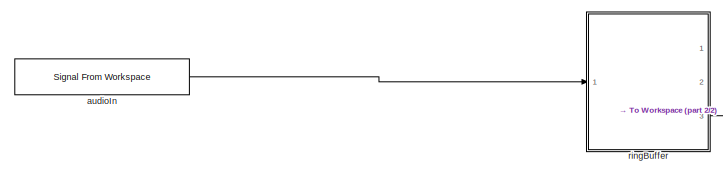
[diagram: root canvas - part 1/2, top left region]
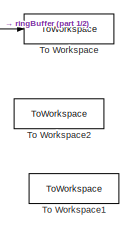
[diagram: root canvas - part 2/2, bottom right region]
MODEL slx_a90151df8dac
KIND model
CONFIG AbsTol = auto
CONFIG EnableMultiTasking = off
CONFIG FixedStep = auto
CONFIG InitFcn = initCallback
CONFIG MaxStep = auto
CONFIG MinStep = auto
CONFIG PostLoadFcn = postLoadCallback
CONFIG RelTol = 1e-3
CONFIG SampleTimeConstraint = Unconstrained
CONFIG SolverName = VariableStepAuto
CONFIG StartTime = 0.0
CONFIG StopFcn = stopCallback
CONFIG StopTime = simParams.stopTime
BLOCK [ToWorkspace] To Workspace
  FixptAsFi = on
  MaxDataPoints = inf
  Ports = [1]
  SampleTime = -1
  SaveFormat = Timeseries
  VariableName = chord2
BLOCK [ToWorkspace] To Workspace1
  FixptAsFi = on
  MaxDataPoints = inf
  Ports = [1]
  SampleTime = -1
  SaveFormat = Timeseries
  VariableName = chord3
BLOCK [ToWorkspace] To Workspace2
  FixptAsFi = on
  MaxDataPoints = inf
  Ports = [1]
  SampleTime = -1
  SaveFormat = Timeseries
  VariableName = chord4
BLOCK [Reference] audioIn  REF=dspsrcs4/Signal From
Workspace
  Ports = [0, 1]
  SourceBlock = dspsrcs4/Signal From\nWorkspace
  SourceProductBaseCode = DS
  SourceType = Signal From Workspace
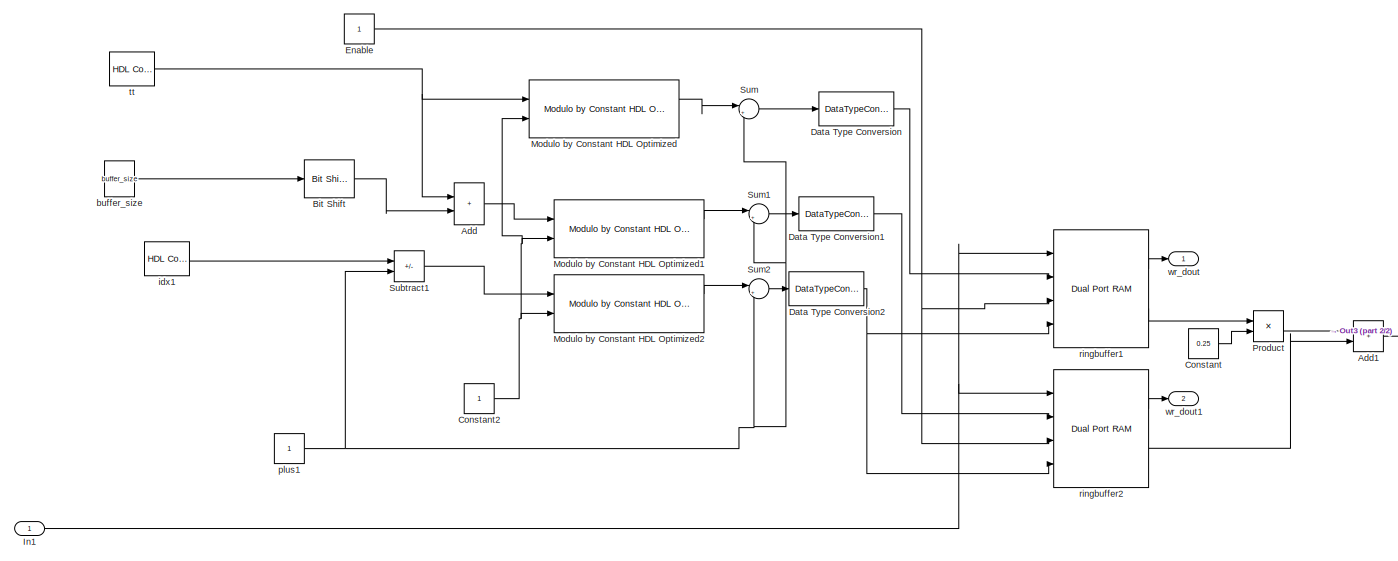
[diagram: ringBuffer - part 1/2, center side, full height]
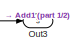
[diagram: ringBuffer - part 2/2, bottom right region]
BLOCK [SubSystem] ringBuffer
  Ports = [1, 3]
  RequestExecContextInheritance = off
BLOCK [Sum] ringBuffer/Add
  IconShape = rectangular
  Ports = [2, 1]
BLOCK [Sum] ringBuffer/Add1
  AccumDataTypeStr = Inherit: Same as first input
  IconShape = rectangular
  OutDataTypeStr = Inherit: Inherit via back propagation
  Ports = [2, 1]
BLOCK [Reference] ringBuffer/Bit Shift  REF=hdlsllib/Logic and Bit
Operations/Bit Shift
  Ports = [1, 1]
  SourceBlock = hdlsllib/Logic and Bit\nOperations/Bit Shift
  SourceProductBaseCode = SL
  SourceType = Bit Shift
BLOCK [Constant] ringBuffer/Constant
  OutDataTypeStr = Inherit: Inherit via back propagation
  Value = 0.25
BLOCK [Constant] ringBuffer/Constant2
  OutDataTypeStr = boolean
  SampleTime = -1
BLOCK [DataTypeConversion] ringBuffer/Data Type Conversion
  OutDataTypeStr = uint16
  RndMeth = Floor
  SaturateOnIntegerOverflow = off
BLOCK [DataTypeConversion] ringBuffer/Data Type Conversion1
  OutDataTypeStr = uint16
  RndMeth = Floor
  SaturateOnIntegerOverflow = off
BLOCK [DataTypeConversion] ringBuffer/Data Type Conversion2
  OutDataTypeStr = uint16
  RndMeth = Floor
  SaturateOnIntegerOverflow = off
BLOCK [Constant] ringBuffer/Enable
  OutDataTypeStr = boolean
BLOCK [Inport] ringBuffer/In1
BLOCK [Reference] ringBuffer/Modulo by Constant HDL Optimized  REF=embmathops/Modulo by Constant
HDL Optimized
  Ports = [2, 2]
  SourceBlock = embmathops/Modulo by Constant\nHDL Optimized
  SourceProductBaseCode = SL
  SourceType = fixed.system.internal.modbyconstant_hdl
BLOCK [Reference] ringBuffer/Modulo by Constant HDL Optimized1  REF=embmathops/Modulo by Constant
HDL Optimized
  Ports = [2, 2]
  SourceBlock = embmathops/Modulo by Constant\nHDL Optimized
  SourceProductBaseCode = SL
  SourceType = fixed.system.internal.modbyconstant_hdl
BLOCK [Reference] ringBuffer/Modulo by Constant HDL Optimized2  REF=embmathops/Modulo by Constant
HDL Optimized
  Ports = [2, 2]
  SourceBlock = embmathops/Modulo by Constant\nHDL Optimized
  SourceProductBaseCode = SL
  SourceType = fixed.system.internal.modbyconstant_hdl
BLOCK [Outport] ringBuffer/Out3
  Port = 3
BLOCK [Product] ringBuffer/Product
  OutDataTypeStr = Inherit: Inherit via back propagation
  Ports = [2, 1]
BLOCK [Sum] ringBuffer/Subtract1
  AccumDataTypeStr = Inherit: Same as first input
  IconShape = rectangular
  Inputs = +-
  OutDataTypeStr = Inherit: Inherit via back propagation
  Ports = [2, 1]
BLOCK [Sum] ringBuffer/Sum
  AccumDataTypeStr = Inherit: Same as first input
  Inputs = |++
  OutDataTypeStr = Inherit: Same as first input
  Ports = [2, 1]
BLOCK [Sum] ringBuffer/Sum1
  AccumDataTypeStr = Inherit: Same as first input
  Inputs = |++
  OutDataTypeStr = Inherit: Same as first input
  Ports = [2, 1]
BLOCK [Sum] ringBuffer/Sum2
  AccumDataTypeStr = Inherit: Same as first input
  Inputs = |++
  OutDataTypeStr = Inherit: Same as first input
  Ports = [2, 1]
BLOCK [Constant] ringBuffer/buffer_size
  SampleTime = modelParams.audio.samplePeriod
  Value = buffer_size
BLOCK [Reference] ringBuffer/idx1  REF=hdlsllib/Sources/HDL Counter
  Ports = [0, 1]
  SourceBlock = hdlsllib/Sources/HDL Counter
  SourceProductBaseCode = SL
  SourceType = HDL Counter
BLOCK [Constant] ringBuffer/plus1
  OutDataTypeStr = Inherit: Inherit via back propagation
  SampleTime = -1
BLOCK [Reference] ringBuffer/ringbuffer1  REF=hdlsllib/HDL RAMs/Dual Port RAM
  Ports = [4, 2]
  SourceBlock = hdlsllib/HDL RAMs/Dual Port RAM
  SourceProductBaseCode = SL
  SourceType = Dual-port RAM
BLOCK [Reference] ringBuffer/ringbuffer2  REF=hdlsllib/HDL RAMs/Dual Port RAM
  Ports = [4, 2]
  SourceBlock = hdlsllib/HDL RAMs/Dual Port RAM
  SourceProductBaseCode = SL
  SourceType = Dual-port RAM
BLOCK [Reference] ringBuffer/tt  REF=hdlsllib/Sources/HDL Counter
  Ports = [0, 1]
  SourceBlock = hdlsllib/Sources/HDL Counter
  SourceProductBaseCode = SL
  SourceType = HDL Counter
BLOCK [Outport] ringBuffer/wr_dout
BLOCK [Outport] ringBuffer/wr_dout1
  Port = 2
LINE audioIn:1 -> ringBuffer:1
LINE ringBuffer/Add1:1 -> ringBuffer/Out3:1
LINE ringBuffer/Add:1 -> ringBuffer/Modulo by Constant HDL Optimized1:1
LINE ringBuffer/Bit Shift:1 -> ringBuffer/Add:2
NET ringBuffer/Constant2:1 -> ringBuffer/Modulo by Constant HDL Optimized1:2, ringBuffer/Modulo by Constant HDL Optimized2:2, ringBuffer/Modulo by Constant HDL Optimized:2
LINE ringBuffer/Constant:1 -> ringBuffer/Product:2
LINE ringBuffer/Data Type Conversion1:1 -> ringBuffer/ringbuffer2:2
NET ringBuffer/Data Type Conversion2:1 -> ringBuffer/ringbuffer1:4, ringBuffer/ringbuffer2:4
LINE ringBuffer/Data Type Conversion:1 -> ringBuffer/ringbuffer1:2
NET ringBuffer/Enable:1 -> ringBuffer/ringbuffer1:3, ringBuffer/ringbuffer2:3
NET ringBuffer/In1:1 -> ringBuffer/ringbuffer1:1, ringBuffer/ringbuffer2:1
LINE ringBuffer/Modulo by Constant HDL Optimized1:1 -> ringBuffer/Sum1:1
LINE ringBuffer/Modulo by Constant HDL Optimized2:1 -> ringBuffer/Sum2:1
LINE ringBuffer/Modulo by Constant HDL Optimized:1 -> ringBuffer/Sum:1
LINE ringBuffer/Product:1 -> ringBuffer/Add1:1
LINE ringBuffer/Subtract1:1 -> ringBuffer/Modulo by Constant HDL Optimized2:1
LINE ringBuffer/Sum1:1 -> ringBuffer/Data Type Conversion1:1
LINE ringBuffer/Sum2:1 -> ringBuffer/Data Type Conversion2:1
LINE ringBuffer/Sum:1 -> ringBuffer/Data Type Conversion:1
LINE ringBuffer/buffer_size:1 -> ringBuffer/Bit Shift:1
LINE ringBuffer/idx1:1 -> ringBuffer/Subtract1:1
NET ringBuffer/plus1:1 -> ringBuffer/Subtract1:2, ringBuffer/Sum1:2, ringBuffer/Sum2:2, ringBuffer/Sum:2
LINE ringBuffer/ringbuffer1:1 -> ringBuffer/wr_dout:1
LINE ringBuffer/ringbuffer1:2 -> ringBuffer/Product:1
LINE ringBuffer/ringbuffer2:1 -> ringBuffer/wr_dout1:1
LINE ringBuffer/ringbuffer2:2 -> ringBuffer/Add1:2
NET ringBuffer/tt:1 -> ringBuffer/Add:1, ringBuffer/Modulo by Constant HDL Optimized:1
LINE ringBuffer:3 -> To Workspace:1
note: NET lines group one-source signal fan-out (src -> all destinations, sorted); 1:1 wires keep LINE
